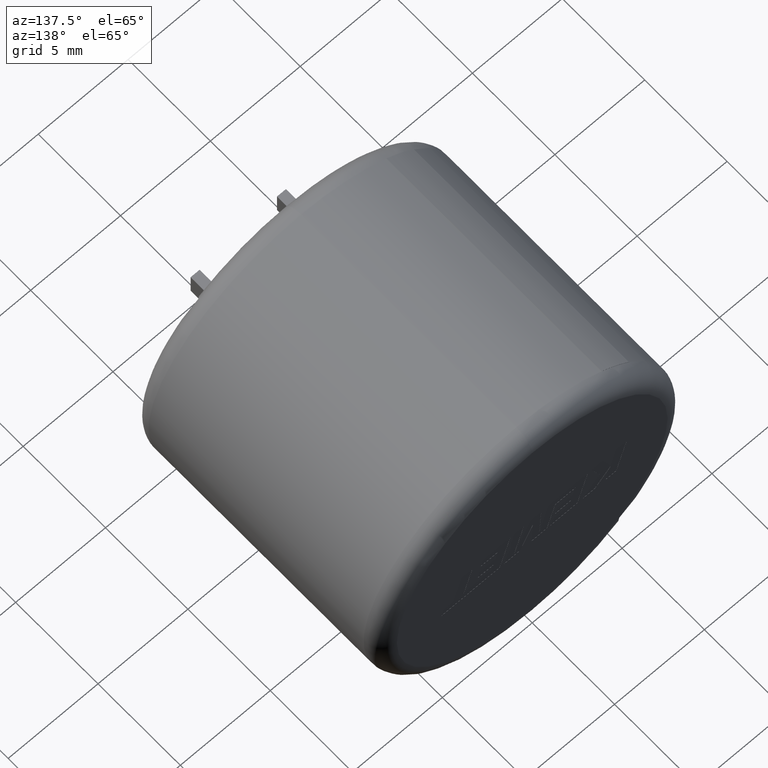
[diagram: clean part render]
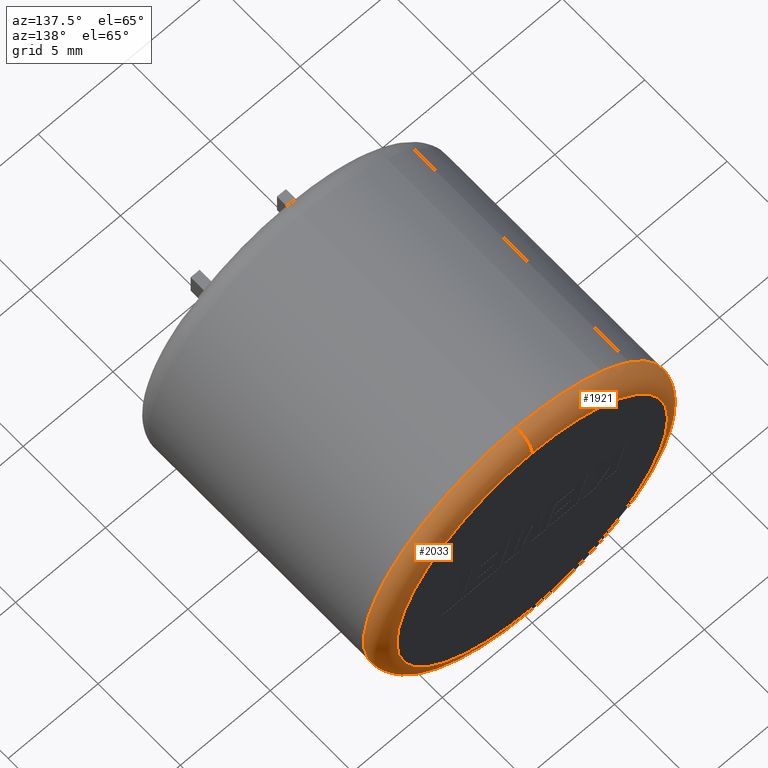
[diagram: same view with one multi-face feature highlighted, each face labeled with its STEP entity id]
A machine part, auxiliary view. The highlighted faces form ONE feature: a constant-radius fillet chain: 2 tangent blend faces with common blend radius 0.9675 mm. The faces share edges in the B-rep.
Their STEP definitions:
[1] entity #2033 (Torus):
#13 = CARTESIAN_POINT ( 'NONE',  ( 0.0000000000000000000, 14.03250000000000100, 0.0000000000000000000 ) ) ;
#148 = ORIENTED_EDGE ( 'NONE', *, *, #806, .F. ) ;
#272 = VERTEX_POINT ( 'NONE', #2413 ) ;
#344 = AXIS2_PLACEMENT_3D ( 'NONE', #703, #470, #2211 ) ;
#354 = VERTEX_POINT ( 'NONE', #541 ) ;
#388 = VERTEX_POINT ( 'NONE', #2689 ) ;
#396 = AXIS2_PLACEMENT_3D ( 'NONE', #803, #1005, #2094 ) ;
#470 = DIRECTION ( 'NONE',  ( -1.000000000000000000, 0.0000000000000000000, 0.0000000000000000000 ) ) ;
#483 = AXIS2_PLACEMENT_3D ( 'NONE', #13, #2148, #1727 ) ;
#541 = CARTESIAN_POINT ( 'NONE',  ( 1.040949779275250100E-015, 14.03250000000000100, 8.500000000000000000 ) ) ;
#553 = AXIS2_PLACEMENT_3D ( 'NONE', #1808, #738, #1136 ) ;
#699 = DIRECTION ( 'NONE',  ( 0.0000000000000000000, 1.000000000000000000, 0.0000000000000000000 ) ) ;
#703 = CARTESIAN_POINT ( 'NONE',  ( 0.0000000000000000000, 14.03250000000000100, 7.532500000000000600 ) ) ;
#738 = DIRECTION ( 'NONE',  ( 0.0000000000000000000, 1.000000000000000000, 0.0000000000000000000 ) ) ;
#761 = CIRCLE ( 'NONE', #2277, 7.532500000000000600 ) ;
#803 = CARTESIAN_POINT ( 'NONE',  ( 9.224652014577440100E-016, 14.03250000000000100, -7.532500000000000600 ) ) ;
#806 = EDGE_CURVE ( 'NONE', #918, #354, #2724, .T. ) ;
#918 = VERTEX_POINT ( 'NONE', #1554 ) ;
#1005 = DIRECTION ( 'NONE',  ( 1.000000000000000000, -0.0000000000000000000, 1.224646799147353200E-016 ) ) ;
#1062 = EDGE_CURVE ( 'NONE', #918, #388, #1410, .T. ) ;
#1136 = DIRECTION ( 'NONE',  ( 0.0000000000000000000, 0.0000000000000000000, 1.000000000000000000 ) ) ;
#1379 = EDGE_LOOP ( 'NONE', ( #148, #1805, #1646, #2523 ) ) ;
#1410 = CIRCLE ( 'NONE', #396, 0.9674999999999995800 ) ;
#1446 = FACE_OUTER_BOUND ( 'NONE', #1379, .T. ) ;
#1527 = DIRECTION ( 'NONE',  ( 0.0000000000000000000, 0.0000000000000000000, 1.000000000000000000 ) ) ;
#1554 = CARTESIAN_POINT ( 'NONE',  ( 0.0000000000000000000, 14.03250000000000100, -8.500000000000000000 ) ) ;
#1646 = ORIENTED_EDGE ( 'NONE', *, *, #1950, .F. ) ;
#1727 = DIRECTION ( 'NONE',  ( 0.0000000000000000000, 0.0000000000000000000, 1.000000000000000000 ) ) ;
#1805 = ORIENTED_EDGE ( 'NONE', *, *, #1062, .T. ) ;
#1808 = CARTESIAN_POINT ( 'NONE',  ( 0.0000000000000000000, 14.03250000000000100, 0.0000000000000000000 ) ) ;
#1950 = EDGE_CURVE ( 'NONE', #272, #388, #761, .T. ) ;
#2033 = ADVANCED_FACE ( 'NONE', ( #1446 ), #2236, .T. ) ;
#2094 = DIRECTION ( 'NONE',  ( 1.224646799147353700E-016, 0.0000000000000000000, -1.000000000000000000 ) ) ;
#2148 = DIRECTION ( 'NONE',  ( -0.0000000000000000000, -1.000000000000000000, -0.0000000000000000000 ) ) ;
#2211 = DIRECTION ( 'NONE',  ( 0.0000000000000000000, 0.0000000000000000000, 1.000000000000000000 ) ) ;
#2236 = TOROIDAL_SURFACE ( 'NONE', #553, 7.532500000000000600, 0.9675000000000000300 ) ;
#2238 = CIRCLE ( 'NONE', #344, 0.9674999999999995800 ) ;
#2277 = AXIS2_PLACEMENT_3D ( 'NONE', #2593, #699, #1527 ) ;
#2413 = CARTESIAN_POINT ( 'NONE',  ( 0.0000000000000000000, 15.00000000000000000, 7.532500000000000600 ) ) ;
#2465 = EDGE_CURVE ( 'NONE', #354, #272, #2238, .T. ) ;
#2523 = ORIENTED_EDGE ( 'NONE', *, *, #2465, .F. ) ;
#2593 = CARTESIAN_POINT ( 'NONE',  ( 0.0000000000000000000, 15.00000000000000000, 0.0000000000000000000 ) ) ;
#2689 = CARTESIAN_POINT ( 'NONE',  ( 9.817074903664970800E-016, 15.00000000000000000, -7.532500000000000600 ) ) ;
#2724 = CIRCLE ( 'NONE', #483, 8.500000000000000000 ) ;
[2] entity #1921 (Torus):
#122 = DIRECTION ( 'NONE',  ( 0.0000000000000000000, 0.0000000000000000000, 1.000000000000000000 ) ) ;
#180 = ORIENTED_EDGE ( 'NONE', *, *, #2465, .T. ) ;
#227 = CIRCLE ( 'NONE', #526, 7.532500000000000600 ) ;
#267 = DIRECTION ( 'NONE',  ( 0.0000000000000000000, 0.0000000000000000000, 1.000000000000000000 ) ) ;
#272 = VERTEX_POINT ( 'NONE', #2413 ) ;
#288 = DIRECTION ( 'NONE',  ( 0.0000000000000000000, 0.0000000000000000000, 1.000000000000000000 ) ) ;
#307 = CARTESIAN_POINT ( 'NONE',  ( -4.743600123693314100, 14.03250000000000100, 7.053244492182075800 ) ) ;
#344 = AXIS2_PLACEMENT_3D ( 'NONE', #703, #470, #2211 ) ;
#354 = VERTEX_POINT ( 'NONE', #541 ) ;
#388 = VERTEX_POINT ( 'NONE', #2689 ) ;
#396 = AXIS2_PLACEMENT_3D ( 'NONE', #803, #1005, #2094 ) ;
#399 = CARTESIAN_POINT ( 'NONE',  ( -6.257209992416755500, 14.03250000000000100, 5.753027299674486400 ) ) ;
#400 = AXIS2_PLACEMENT_3D ( 'NONE', #1376, #1334, #1776 ) ;
#432 = ORIENTED_EDGE ( 'NONE', *, *, #1768, .F. ) ;
#470 = DIRECTION ( 'NONE',  ( -1.000000000000000000, 0.0000000000000000000, 0.0000000000000000000 ) ) ;
#526 = AXIS2_PLACEMENT_3D ( 'NONE', #2642, #942, #747 ) ;
#541 = CARTESIAN_POINT ( 'NONE',  ( 1.040949779275250100E-015, 14.03250000000000100, 8.500000000000000000 ) ) ;
#651 = EDGE_CURVE ( 'NONE', #388, #272, #227, .T. ) ;
#703 = CARTESIAN_POINT ( 'NONE',  ( 0.0000000000000000000, 14.03250000000000100, 7.532500000000000600 ) ) ;
#747 = DIRECTION ( 'NONE',  ( 0.0000000000000000000, 0.0000000000000000000, 1.000000000000000000 ) ) ;
#764 = CARTESIAN_POINT ( 'NONE',  ( 0.0000000000000000000, 14.03250000000000100, 0.0000000000000000000 ) ) ;
#802 = ORIENTED_EDGE ( 'NONE', *, *, #651, .F. ) ;
#803 = CARTESIAN_POINT ( 'NONE',  ( 9.224652014577440100E-016, 14.03250000000000100, -7.532500000000000600 ) ) ;
#918 = VERTEX_POINT ( 'NONE', #1554 ) ;
#942 = DIRECTION ( 'NONE',  ( 0.0000000000000000000, 1.000000000000000000, 0.0000000000000000000 ) ) ;
#967 = EDGE_LOOP ( 'NONE', ( #1937, #1354, #432, #1323, #180, #802 ) ) ;
#1005 = DIRECTION ( 'NONE',  ( 1.000000000000000000, -0.0000000000000000000, 1.224646799147353200E-016 ) ) ;
#1016 = AXIS2_PLACEMENT_3D ( 'NONE', #1075, #2377, #267 ) ;
#1062 = EDGE_CURVE ( 'NONE', #918, #388, #1410, .T. ) ;
#1075 = CARTESIAN_POINT ( 'NONE',  ( 0.0000000000000000000, 14.03250000000000100, 0.0000000000000000000 ) ) ;
#1113 = FACE_OUTER_BOUND ( 'NONE', #967, .T. ) ;
#1323 = ORIENTED_EDGE ( 'NONE', *, *, #2572, .F. ) ;
#1334 = DIRECTION ( 'NONE',  ( -0.0000000000000000000, -1.000000000000000000, -0.0000000000000000000 ) ) ;
#1354 = ORIENTED_EDGE ( 'NONE', *, *, #1370, .F. ) ;
#1370 = EDGE_CURVE ( 'NONE', #2764, #918, #2384, .T. ) ;
#1376 = CARTESIAN_POINT ( 'NONE',  ( 0.0000000000000000000, 14.03250000000000100, 0.0000000000000000000 ) ) ;
#1410 = CIRCLE ( 'NONE', #396, 0.9674999999999995800 ) ;
#1434 = VERTEX_POINT ( 'NONE', #307 ) ;
#1447 = CIRCLE ( 'NONE', #400, 8.500000000000000000 ) ;
#1528 = DIRECTION ( 'NONE',  ( -0.0000000000000000000, -1.000000000000000000, -0.0000000000000000000 ) ) ;
#1554 = CARTESIAN_POINT ( 'NONE',  ( 0.0000000000000000000, 14.03250000000000100, -8.500000000000000000 ) ) ;
#1768 = EDGE_CURVE ( 'NONE', #1434, #2764, #1447, .T. ) ;
#1776 = DIRECTION ( 'NONE',  ( 0.0000000000000000000, 0.0000000000000000000, 1.000000000000000000 ) ) ;
#1802 = DIRECTION ( 'NONE',  ( -0.0000000000000000000, -1.000000000000000000, -0.0000000000000000000 ) ) ;
#1921 = ADVANCED_FACE ( 'NONE', ( #1113 ), #1923, .T. ) ;
#1923 = TOROIDAL_SURFACE ( 'NONE', #1016, 7.532500000000000600, 0.9675000000000000300 ) ;
#1937 = ORIENTED_EDGE ( 'NONE', *, *, #1062, .F. ) ;
#2009 = AXIS2_PLACEMENT_3D ( 'NONE', #764, #1802, #122 ) ;
#2043 = AXIS2_PLACEMENT_3D ( 'NONE', #2171, #1528, #288 ) ;
#2094 = DIRECTION ( 'NONE',  ( 1.224646799147353700E-016, 0.0000000000000000000, -1.000000000000000000 ) ) ;
#2171 = CARTESIAN_POINT ( 'NONE',  ( 0.0000000000000000000, 14.03250000000000100, 0.0000000000000000000 ) ) ;
#2211 = DIRECTION ( 'NONE',  ( 0.0000000000000000000, 0.0000000000000000000, 1.000000000000000000 ) ) ;
#2238 = CIRCLE ( 'NONE', #344, 0.9674999999999995800 ) ;
#2358 = CIRCLE ( 'NONE', #2009, 8.500000000000000000 ) ;
#2377 = DIRECTION ( 'NONE',  ( 0.0000000000000000000, 1.000000000000000000, 0.0000000000000000000 ) ) ;
#2384 = CIRCLE ( 'NONE', #2043, 8.500000000000000000 ) ;
#2413 = CARTESIAN_POINT ( 'NONE',  ( 0.0000000000000000000, 15.00000000000000000, 7.532500000000000600 ) ) ;
#2465 = EDGE_CURVE ( 'NONE', #354, #272, #2238, .T. ) ;
#2572 = EDGE_CURVE ( 'NONE', #354, #1434, #2358, .T. ) ;
#2642 = CARTESIAN_POINT ( 'NONE',  ( 0.0000000000000000000, 15.00000000000000000, 0.0000000000000000000 ) ) ;
#2689 = CARTESIAN_POINT ( 'NONE',  ( 9.817074903664970800E-016, 15.00000000000000000, -7.532500000000000600 ) ) ;
#2764 = VERTEX_POINT ( 'NONE', #399 ) ;